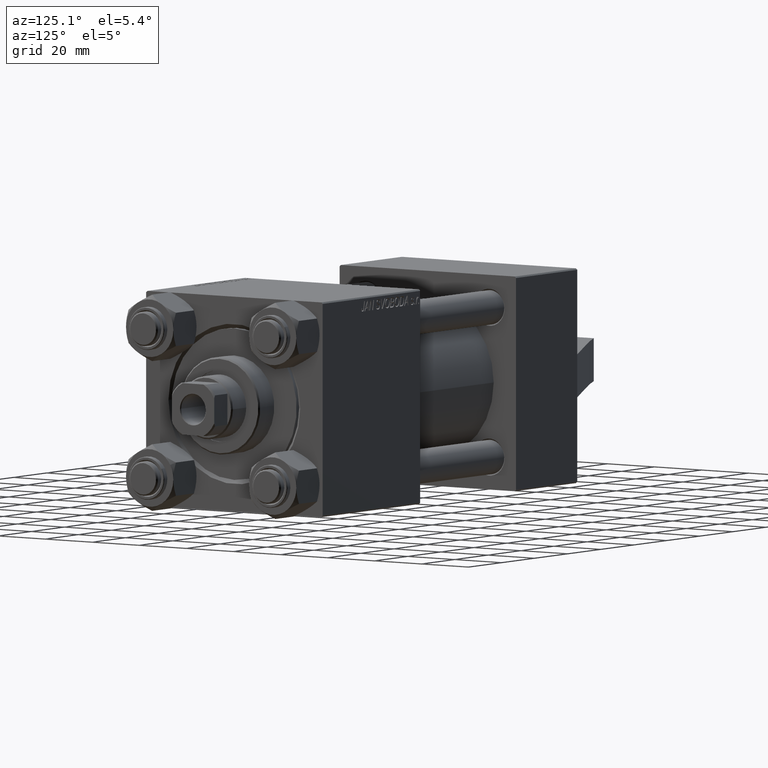
[diagram: clean part render]
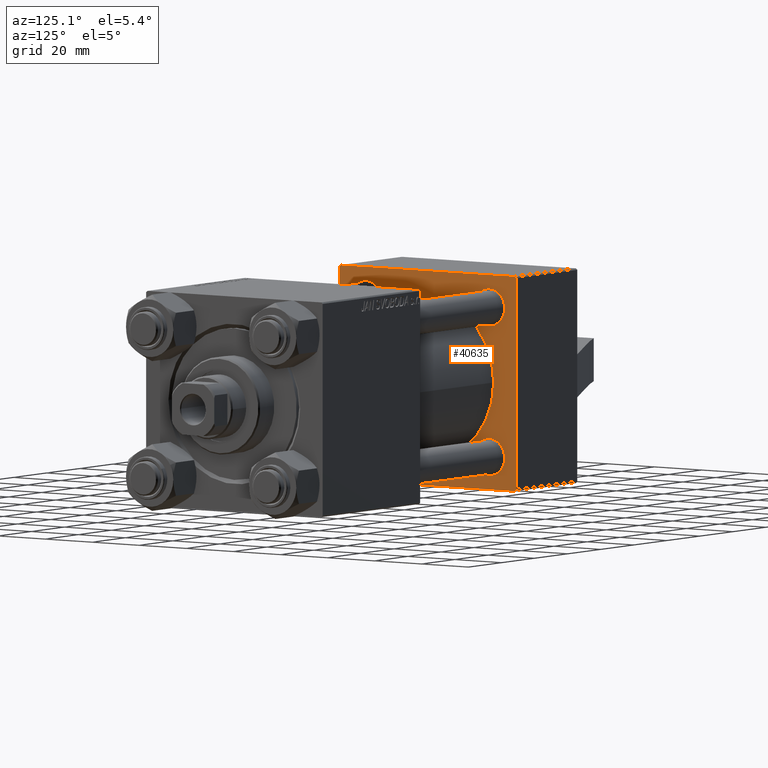
[diagram: same view with one face highlighted and labeled with its STEP entity id]
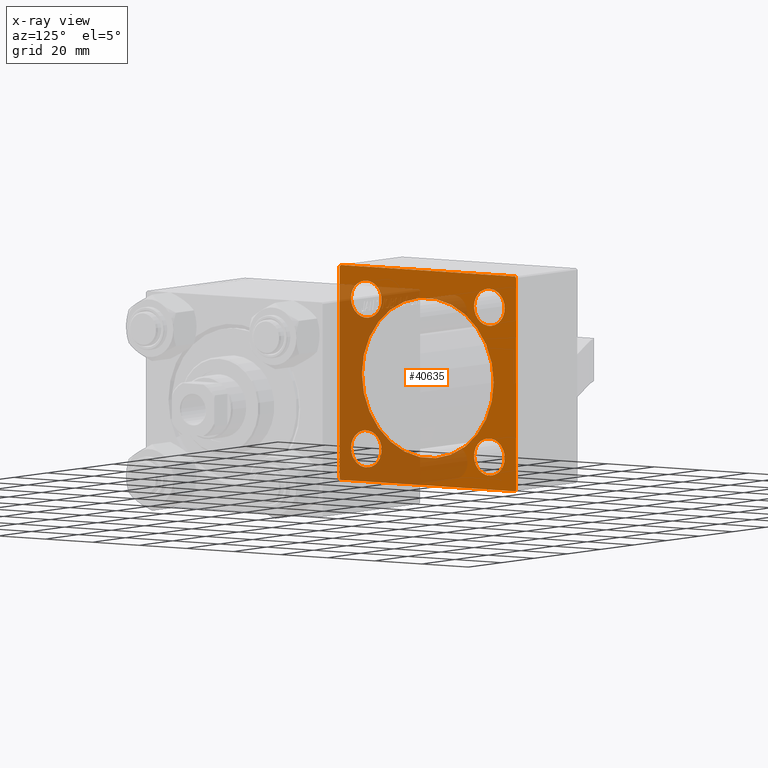
[diagram: x-ray of the same camera — body ghosted, the highlighted face saturated]
A machine part, auxiliary view. The second image highlights one B-rep face of the part: STEP entity #40635.
The next image is the same camera in x-ray: the body ghosted, the highlighted face saturated — about 48% of this face is hidden behind the body in this view.
In plain terms, the highlighted planar face has unit normal (-1, -0, 0).
Its self-contained STEP definition (entity closure, byte-faithful):
#313 = LINE ( 'NONE', #18687, #37987 ) ;
#391 = CARTESIAN_POINT ( 'NONE',  ( 37.00000000000000000, -37.00000000000002132, -37.50000000000000711 ) ) ;
#531 = LINE ( 'NONE', #42121, #6591 ) ;
#896 = LINE ( 'NONE', #35569, #17084 ) ;
#1008 = DIRECTION ( 'NONE',  ( 0.000000000000000000, -1.000000000000000000, -9.251858538542971581E-17 ) ) ;
#1268 = AXIS2_PLACEMENT_3D ( 'NONE', #18792, #12045, #22056 ) ;
#1647 = CIRCLE ( 'NONE', #31372, 6.499999999999968026 ) ;
#2167 = CARTESIAN_POINT ( 'NONE',  ( 37.00000000000000000, -37.50000000000000000, -37.00000000000003553 ) ) ;
#2364 = CARTESIAN_POINT ( 'NONE',  ( 37.00000000000000000, -26.14999999999999147, 26.15000000000000924 ) ) ;
#2475 = EDGE_CURVE ( 'NONE', #8437, #11629, #16924, .T. ) ;
#2653 = VERTEX_POINT ( 'NONE', #9353 ) ;
#3186 = VERTEX_POINT ( 'NONE', #28002 ) ;
#3242 = DIRECTION ( 'NONE',  ( -0.000000000000000000, 0.7071067811865474617, 0.7071067811865474617 ) ) ;
#3269 = ORIENTED_EDGE ( 'NONE', *, *, #36560, .T. ) ;
#3501 = CARTESIAN_POINT ( 'NONE',  ( 37.00000000000000000, 26.14999999999999858, 19.65000000000005187 ) ) ;
#3584 = EDGE_CURVE ( 'NONE', #15769, #26432, #21434, .T. ) ;
#3829 = EDGE_LOOP ( 'NONE', ( #39484, #23574 ) ) ;
#3833 = DIRECTION ( 'NONE',  ( 1.000000000000000000, -0.000000000000000000, 0.000000000000000000 ) ) ;
#4123 = VECTOR ( 'NONE', #23762, 1000.000000000000000 ) ;
#4361 = FACE_OUTER_BOUND ( 'NONE', #6840, .T. ) ;
#4740 = DIRECTION ( 'NONE',  ( -1.000000000000000000, 0.000000000000000000, -0.000000000000000000 ) ) ;
#4779 = CARTESIAN_POINT ( 'NONE',  ( 37.00000000000000000, 37.49999999999999289, 37.00000000000000000 ) ) ;
#4919 = ORIENTED_EDGE ( 'NONE', *, *, #34917, .F. ) ;
#5148 = DIRECTION ( 'NONE',  ( 0.000000000000000000, 0.000000000000000000, 1.000000000000000000 ) ) ;
#5435 = EDGE_CURVE ( 'NONE', #3186, #31907, #18493, .T. ) ;
#5935 = CARTESIAN_POINT ( 'NONE',  ( 37.00000000000000000, -26.14999999999999147, 26.15000000000000924 ) ) ;
#6591 = VECTOR ( 'NONE', #3242, 1000.000000000000114 ) ;
#6741 = VERTEX_POINT ( 'NONE', #11351 ) ;
#6840 = EDGE_LOOP ( 'NONE', ( #43746, #7632, #39819, #22240, #42511, #33231, #29391, #8361 ) ) ;
#6994 = CARTESIAN_POINT ( 'NONE',  ( 37.00000000000000000, 36.99999999999999289, 37.50000000000000000 ) ) ;
#7311 = CARTESIAN_POINT ( 'NONE',  ( 37.00000000000000000, -26.14999999999999147, -26.15000000000000924 ) ) ;
#7632 = ORIENTED_EDGE ( 'NONE', *, *, #44116, .T. ) ;
#7860 = PLANE ( 'NONE',  #1268 ) ;
#8097 = CARTESIAN_POINT ( 'NONE',  ( 37.00000000000000000, -37.00000000000002132, -37.50000000000000711 ) ) ;
#8106 = CIRCLE ( 'NONE', #34114, 6.499999999999960920 ) ;
#8124 = ORIENTED_EDGE ( 'NONE', *, *, #2475, .T. ) ;
#8361 = ORIENTED_EDGE ( 'NONE', *, *, #17397, .T. ) ;
#8437 = VERTEX_POINT ( 'NONE', #40040 ) ;
#8550 = FACE_BOUND ( 'NONE', #19033, .T. ) ;
#8609 = EDGE_CURVE ( 'NONE', #6741, #29799, #896, .T. ) ;
#9112 = CARTESIAN_POINT ( 'NONE',  ( 37.00000000000000000, 37.49999999999999289, -37.50000000000000000 ) ) ;
#9353 = CARTESIAN_POINT ( 'NONE',  ( 37.00000000000000000, -2.602085213965210642E-15, 28.00000000000000000 ) ) ;
#10642 = EDGE_CURVE ( 'NONE', #17131, #25766, #1647, .T. ) ;
#11351 = CARTESIAN_POINT ( 'NONE',  ( 37.00000000000000000, -37.00000000000000711, 37.49999999999999289 ) ) ;
#11629 = VERTEX_POINT ( 'NONE', #3501 ) ;
#12045 = DIRECTION ( 'NONE',  ( -1.000000000000000000, 0.000000000000000000, -0.000000000000000000 ) ) ;
#12588 = DIRECTION ( 'NONE',  ( -1.000000000000000000, 0.000000000000000000, -0.000000000000000000 ) ) ;
#12761 = ORIENTED_EDGE ( 'NONE', *, *, #21888, .T. ) ;
#13046 = LINE ( 'NONE', #9112, #4123 ) ;
#13058 = AXIS2_PLACEMENT_3D ( 'NONE', #19907, #16416, #19678 ) ;
#13076 = EDGE_LOOP ( 'NONE', ( #22862, #4919 ) ) ;
#14838 = FACE_BOUND ( 'NONE', #13076, .T. ) ;
#14892 = DIRECTION ( 'NONE',  ( 0.000000000000000000, 0.000000000000000000, 1.000000000000000000 ) ) ;
#14939 = DIRECTION ( 'NONE',  ( 1.000000000000000000, -0.000000000000000000, 0.000000000000000000 ) ) ;
#15218 = EDGE_CURVE ( 'NONE', #26432, #6741, #313, .T. ) ;
#15453 = EDGE_LOOP ( 'NONE', ( #17963, #29781 ) ) ;
#15769 = VERTEX_POINT ( 'NONE', #4779 ) ;
#15851 = CARTESIAN_POINT ( 'NONE',  ( 37.00000000000000000, 26.14999999999999858, -26.15000000000000213 ) ) ;
#15948 = DIRECTION ( 'NONE',  ( -1.000000000000000000, 0.000000000000000000, -0.000000000000000000 ) ) ;
#16098 = EDGE_CURVE ( 'NONE', #15769, #29242, #21853, .T. ) ;
#16416 = DIRECTION ( 'NONE',  ( -1.000000000000000000, 0.000000000000000000, -0.000000000000000000 ) ) ;
#16553 = DIRECTION ( 'NONE',  ( -1.000000000000000000, 0.000000000000000000, -0.000000000000000000 ) ) ;
#16924 = CIRCLE ( 'NONE', #40710, 6.499999999999953815 ) ;
#17084 = VECTOR ( 'NONE', #28821, 1000.000000000000114 ) ;
#17131 = VERTEX_POINT ( 'NONE', #26730 ) ;
#17164 = ORIENTED_EDGE ( 'NONE', *, *, #10642, .T. ) ;
#17397 = EDGE_CURVE ( 'NONE', #27575, #21098, #21809, .T. ) ;
#17739 = CARTESIAN_POINT ( 'NONE',  ( 37.00000000000000000, 26.14999999999999858, 26.15000000000000213 ) ) ;
#17963 = ORIENTED_EDGE ( 'NONE', *, *, #33753, .T. ) ;
#18019 = LINE ( 'NONE', #31991, #43448 ) ;
#18493 = CIRCLE ( 'NONE', #19997, 6.499999999999946709 ) ;
#18687 = CARTESIAN_POINT ( 'NONE',  ( 37.00000000000000000, 37.49999999999999289, 37.50000000000000000 ) ) ;
#18792 = CARTESIAN_POINT ( 'NONE',  ( 37.00000000000000000, 0.000000000000000000, 0.000000000000000000 ) ) ;
#19018 = FACE_BOUND ( 'NONE', #3829, .T. ) ;
#19033 = EDGE_LOOP ( 'NONE', ( #12761, #8124 ) ) ;
#19483 = CIRCLE ( 'NONE', #35838, 6.499999999999953815 ) ;
#19678 = DIRECTION ( 'NONE',  ( 0.000000000000000000, 0.000000000000000000, 1.000000000000000000 ) ) ;
#19869 = AXIS2_PLACEMENT_3D ( 'NONE', #7311, #4740, #22208 ) ;
#19907 = CARTESIAN_POINT ( 'NONE',  ( 37.00000000000000000, 26.14999999999999858, -26.15000000000000213 ) ) ;
#19997 = AXIS2_PLACEMENT_3D ( 'NONE', #15851, #12588, #5148 ) ;
#20975 = EDGE_LOOP ( 'NONE', ( #3269, #17164 ) ) ;
#21098 = VERTEX_POINT ( 'NONE', #8097 ) ;
#21434 = LINE ( 'NONE', #6994, #40774 ) ;
#21712 = DIRECTION ( 'NONE',  ( -1.000000000000000000, 0.000000000000000000, -0.000000000000000000 ) ) ;
#21725 = CARTESIAN_POINT ( 'NONE',  ( 37.00000000000000000, 26.14999999999999858, -32.64999999999994884 ) ) ;
#21809 = LINE ( 'NONE', #391, #45469 ) ;
#21853 = LINE ( 'NONE', #35817, #28358 ) ;
#21888 = EDGE_CURVE ( 'NONE', #11629, #8437, #19483, .T. ) ;
#22056 = DIRECTION ( 'NONE',  ( -0.000000000000000000, 0.000000000000000000, 1.000000000000000000 ) ) ;
#22208 = DIRECTION ( 'NONE',  ( 0.000000000000000000, 0.000000000000000000, 1.000000000000000000 ) ) ;
#22240 = ORIENTED_EDGE ( 'NONE', *, *, #3584, .T. ) ;
#22294 = FACE_BOUND ( 'NONE', #15453, .T. ) ;
#22542 = CARTESIAN_POINT ( 'NONE',  ( 37.00000000000000000, 36.99999999999999289, 37.50000000000000000 ) ) ;
#22579 = DIRECTION ( 'NONE',  ( -1.000000000000000000, 0.000000000000000000, -0.000000000000000000 ) ) ;
#22862 = ORIENTED_EDGE ( 'NONE', *, *, #43329, .F. ) ;
#22864 = CIRCLE ( 'NONE', #19869, 6.499999999999960920 ) ;
#23155 = CARTESIAN_POINT ( 'NONE',  ( 37.00000000000000000, -26.14999999999999147, -32.64999999999997016 ) ) ;
#23574 = ORIENTED_EDGE ( 'NONE', *, *, #44851, .T. ) ;
#23625 = DIRECTION ( 'NONE',  ( 0.000000000000000000, 0.000000000000000000, 1.000000000000000000 ) ) ;
#23762 = DIRECTION ( 'NONE',  ( 0.000000000000000000, -1.000000000000000000, -9.251858538542972814E-17 ) ) ;
#23964 = CARTESIAN_POINT ( 'NONE',  ( 37.00000000000000000, -26.14999999999999147, -26.15000000000000924 ) ) ;
#24553 = VERTEX_POINT ( 'NONE', #23155 ) ;
#25014 = DIRECTION ( 'NONE',  ( 0.000000000000000000, 9.251858538542971581E-17, -1.000000000000000000 ) ) ;
#25198 = CARTESIAN_POINT ( 'NONE',  ( 37.00000000000000000, -2.602085213965210642E-15, 0.000000000000000000 ) ) ;
#25766 = VERTEX_POINT ( 'NONE', #37297 ) ;
#25919 = AXIS2_PLACEMENT_3D ( 'NONE', #25198, #14939, #43349 ) ;
#26408 = CARTESIAN_POINT ( 'NONE',  ( 37.00000000000000000, 37.49999999999999289, -36.99999999999998579 ) ) ;
#26412 = VERTEX_POINT ( 'NONE', #32780 ) ;
#26432 = VERTEX_POINT ( 'NONE', #22542 ) ;
#26730 = CARTESIAN_POINT ( 'NONE',  ( 37.00000000000000000, -26.14999999999999147, 32.64999999999997726 ) ) ;
#27186 = CIRCLE ( 'NONE', #13058, 6.499999999999946709 ) ;
#27454 = EDGE_CURVE ( 'NONE', #29799, #27575, #18019, .T. ) ;
#27575 = VERTEX_POINT ( 'NONE', #2167 ) ;
#28002 = CARTESIAN_POINT ( 'NONE',  ( 37.00000000000000000, 26.14999999999999858, -19.65000000000005542 ) ) ;
#28358 = VECTOR ( 'NONE', #32090, 1000.000000000000000 ) ;
#28422 = DIRECTION ( 'NONE',  ( 0.000000000000000000, -0.7071067811865474617, 0.7071067811865474617 ) ) ;
#28821 = DIRECTION ( 'NONE',  ( -0.000000000000000000, -0.7071067811865474617, -0.7071067811865474617 ) ) ;
#29048 = FACE_BOUND ( 'NONE', #20975, .T. ) ;
#29242 = VERTEX_POINT ( 'NONE', #26408 ) ;
#29391 = ORIENTED_EDGE ( 'NONE', *, *, #27454, .T. ) ;
#29781 = ORIENTED_EDGE ( 'NONE', *, *, #5435, .T. ) ;
#29799 = VERTEX_POINT ( 'NONE', #32747 ) ;
#29862 = VERTEX_POINT ( 'NONE', #36921 ) ;
#31372 = AXIS2_PLACEMENT_3D ( 'NONE', #2364, #16553, #41917 ) ;
#31533 = CARTESIAN_POINT ( 'NONE',  ( 37.00000000000000000, -2.602085213965210642E-15, 0.000000000000000000 ) ) ;
#31907 = VERTEX_POINT ( 'NONE', #21725 ) ;
#31991 = CARTESIAN_POINT ( 'NONE',  ( 37.00000000000000000, -37.50000000000000711, 37.49999999999999289 ) ) ;
#32090 = DIRECTION ( 'NONE',  ( 0.000000000000000000, 0.000000000000000000, -1.000000000000000000 ) ) ;
#32467 = CIRCLE ( 'NONE', #40677, 6.499999999999968026 ) ;
#32583 = CARTESIAN_POINT ( 'NONE',  ( 37.00000000000000000, 26.14999999999999858, 26.15000000000000213 ) ) ;
#32747 = CARTESIAN_POINT ( 'NONE',  ( 37.00000000000000000, -37.50000000000000711, 36.99999999999999289 ) ) ;
#32780 = CARTESIAN_POINT ( 'NONE',  ( 37.00000000000000000, -26.14999999999999147, -19.65000000000004832 ) ) ;
#32886 = VERTEX_POINT ( 'NONE', #33872 ) ;
#33231 = ORIENTED_EDGE ( 'NONE', *, *, #8609, .T. ) ;
#33753 = EDGE_CURVE ( 'NONE', #31907, #3186, #27186, .T. ) ;
#33872 = CARTESIAN_POINT ( 'NONE',  ( 37.00000000000000000, 36.99999999999997868, -37.50000000000000000 ) ) ;
#34114 = AXIS2_PLACEMENT_3D ( 'NONE', #23964, #41657, #38147 ) ;
#34376 = EDGE_CURVE ( 'NONE', #32886, #21098, #13046, .T. ) ;
#34917 = EDGE_CURVE ( 'NONE', #29862, #2653, #36118, .T. ) ;
#35020 = DIRECTION ( 'NONE',  ( 0.000000000000000000, 0.000000000000000000, 1.000000000000000000 ) ) ;
#35569 = CARTESIAN_POINT ( 'NONE',  ( 37.00000000000000000, -37.50000000000000711, 36.99999999999999289 ) ) ;
#35817 = CARTESIAN_POINT ( 'NONE',  ( 37.00000000000000000, 37.49999999999999289, 37.50000000000000000 ) ) ;
#35838 = AXIS2_PLACEMENT_3D ( 'NONE', #32583, #22579, #14892 ) ;
#36118 = CIRCLE ( 'NONE', #37612, 28.00000000000000000 ) ;
#36560 = EDGE_CURVE ( 'NONE', #25766, #17131, #32467, .T. ) ;
#36921 = CARTESIAN_POINT ( 'NONE',  ( 37.00000000000000000, 8.269258236473776482E-16, -28.00000000000000000 ) ) ;
#37297 = CARTESIAN_POINT ( 'NONE',  ( 37.00000000000000000, -26.14999999999999147, 19.65000000000004121 ) ) ;
#37612 = AXIS2_PLACEMENT_3D ( 'NONE', #31533, #3833, #35020 ) ;
#37752 = EDGE_CURVE ( 'NONE', #24553, #26412, #22864, .T. ) ;
#37987 = VECTOR ( 'NONE', #1008, 1000.000000000000000 ) ;
#38147 = DIRECTION ( 'NONE',  ( 0.000000000000000000, 0.000000000000000000, 1.000000000000000000 ) ) ;
#39257 = DIRECTION ( 'NONE',  ( 0.000000000000000000, 0.7071067811865524577, -0.7071067811865426878 ) ) ;
#39484 = ORIENTED_EDGE ( 'NONE', *, *, #37752, .T. ) ;
#39819 = ORIENTED_EDGE ( 'NONE', *, *, #16098, .F. ) ;
#40040 = CARTESIAN_POINT ( 'NONE',  ( 37.00000000000000000, 26.14999999999999858, 32.64999999999995595 ) ) ;
#40635 = ADVANCED_FACE ( 'NONE', ( #14838, #8550, #29048, #19018, #22294, #4361 ), #7860, .F. ) ;
#40677 = AXIS2_PLACEMENT_3D ( 'NONE', #5935, #15948, #23625 ) ;
#40710 = AXIS2_PLACEMENT_3D ( 'NONE', #17739, #21712, #45459 ) ;
#40774 = VECTOR ( 'NONE', #28422, 1000.000000000000114 ) ;
#41657 = DIRECTION ( 'NONE',  ( -1.000000000000000000, 0.000000000000000000, -0.000000000000000000 ) ) ;
#41917 = DIRECTION ( 'NONE',  ( 0.000000000000000000, 0.000000000000000000, 1.000000000000000000 ) ) ;
#42121 = CARTESIAN_POINT ( 'NONE',  ( 37.00000000000000000, 37.49999999999999289, -36.99999999999998579 ) ) ;
#42511 = ORIENTED_EDGE ( 'NONE', *, *, #15218, .T. ) ;
#43329 = EDGE_CURVE ( 'NONE', #2653, #29862, #45969, .T. ) ;
#43349 = DIRECTION ( 'NONE',  ( 0.000000000000000000, 0.000000000000000000, 1.000000000000000000 ) ) ;
#43448 = VECTOR ( 'NONE', #25014, 1000.000000000000000 ) ;
#43746 = ORIENTED_EDGE ( 'NONE', *, *, #34376, .F. ) ;
#44116 = EDGE_CURVE ( 'NONE', #32886, #29242, #531, .T. ) ;
#44851 = EDGE_CURVE ( 'NONE', #26412, #24553, #8106, .T. ) ;
#45459 = DIRECTION ( 'NONE',  ( 0.000000000000000000, 0.000000000000000000, 1.000000000000000000 ) ) ;
#45469 = VECTOR ( 'NONE', #39257, 1000.000000000000000 ) ;
#45969 = CIRCLE ( 'NONE', #25919, 28.00000000000000000 ) ;